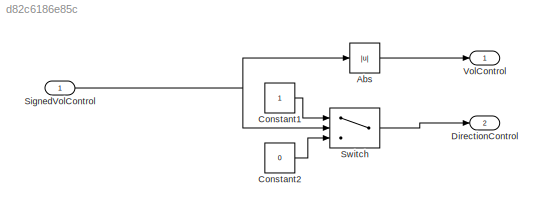
MODEL slx_d82c6186e85c
KIND model
CONFIG AbsTol = auto
CONFIG EnableMultiTasking = off
CONFIG FixedStep = auto
CONFIG MaxStep = auto
CONFIG MinStep = auto
CONFIG RelTol = 1e-3
CONFIG SampleTimeConstraint = Unconstrained
CONFIG SolverName = VariableStepAuto
CONFIG StartTime = 0.0
CONFIG StopTime = 10.0
BLOCK [Abs] Abs
  SaturateOnIntegerOverflow = off
BLOCK [Constant] Constant1
BLOCK [Constant] Constant2
  Value = 0
BLOCK [Outport] DirectionControl
  Port = 2
BLOCK [Inport] SignedVolControl
BLOCK [Switch] Switch
  InputSameDT = off
  SaturateOnIntegerOverflow = off
  ZeroCross = off
BLOCK [Outport] VolControl
LINE Abs:1 -> VolControl:1
LINE Constant1:1 -> Switch:1
LINE Constant2:1 -> Switch:3
NET SignedVolControl:1 -> Abs:1, Switch:2
LINE Switch:1 -> DirectionControl:1
note: NET lines group one-source signal fan-out (src -> all destinations, sorted); 1:1 wires keep LINE
